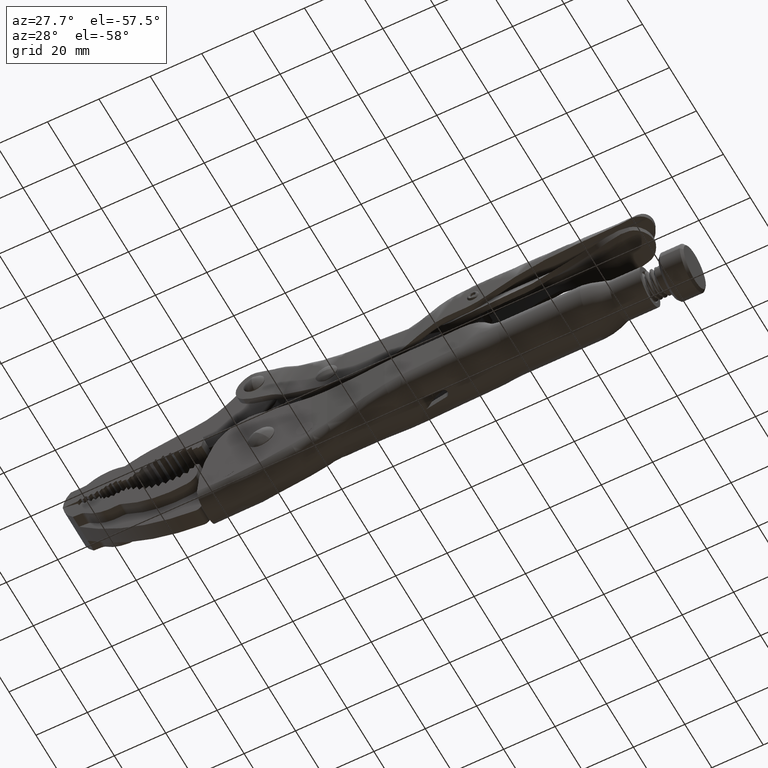
[diagram: clean part render]
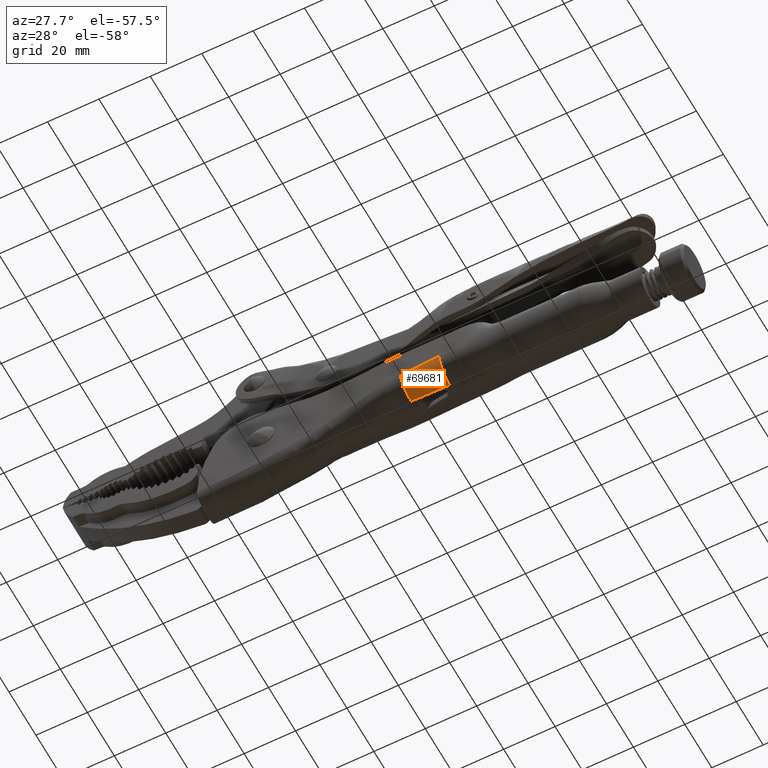
[diagram: same view with one face highlighted and labeled with its STEP entity id]
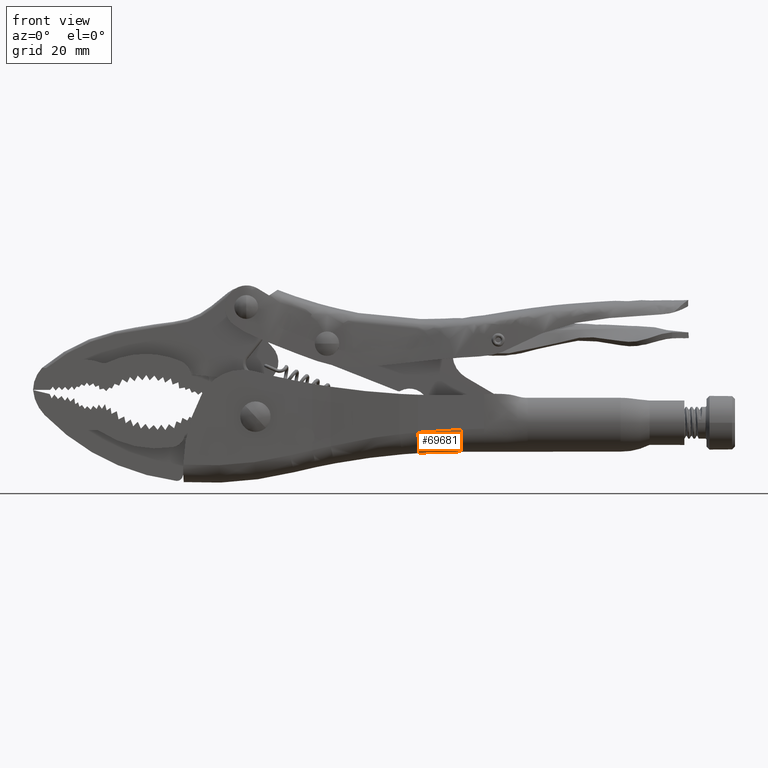
[diagram: same view with one face highlighted and labeled with its STEP entity id]
A machine part, auxiliary view. The second image highlights one B-rep face of the part: STEP entity #69681.
A second angle (front view) of the same face is appended — the face is thin or edge-on in the first view.
In plain terms, the highlighted face is a freeform B-spline surface patch.
Its self-contained STEP definition (entity closure, byte-faithful):
#183 = CARTESIAN_POINT ( 'NONE',  ( 61.49034173656430400, -19.99999999999998900, -3.135650601899519200 ) ) ;
#287 = DIRECTION ( 'NONE',  ( 1.800367193754544300E-015, 0.0000000000000000000, -1.000000000000000000 ) ) ;
#524 = CARTESIAN_POINT ( 'NONE',  ( 59.07831686355142900, -19.99999963617992200, -3.353681059114300500 ) ) ;
#855 = CARTESIAN_POINT ( 'NONE',  ( 57.11263101787631800, -20.00000000000000000, -3.528816097367310200 ) ) ;
#1028 = ORIENTED_EDGE ( 'NONE', *, *, #30208, .F. ) ;
#2699 = CARTESIAN_POINT ( 'NONE',  ( 58.36134160243837200, -20.00000000000046900, -3.411096639634326100 ) ) ;
#3038 = CARTESIAN_POINT ( 'NONE',  ( 63.54545003966574500, -19.99999999996611400, -10.50000000000001100 ) ) ;
#3376 = CARTESIAN_POINT ( 'NONE',  ( 68.42975549948826600, -12.18158827290741900, -10.50000000000000900 ) ) ;
#6967 = CARTESIAN_POINT ( 'NONE',  ( 68.42975549948826600, -20.00000000000000400, -2.791690352970017200 ) ) ;
#7293 = CARTESIAN_POINT ( 'NONE',  ( 65.12368582375523800, -19.99999999999998600, -2.881806214197649500 ) ) ;
#7426 = CARTESIAN_POINT ( 'NONE',  ( 63.54545003969474900, -12.29169035650321900, -10.50000000000000900 ) ) ;
#7614 = CARTESIAN_POINT ( 'NONE',  ( 63.19737676863434900, -20.00000000000001100, -3.000149862796279300 ) ) ;
#7942 = CARTESIAN_POINT ( 'NONE',  ( 61.03133046595368000, -19.99999999999999600, -3.176363073181995800 ) ) ;
#8269 = CARTESIAN_POINT ( 'NONE',  ( 58.68172605334304100, -19.99999977518374900, -3.389348684065014400 ) ) ;
#8600 = CARTESIAN_POINT ( 'NONE',  ( 56.77497128624731500, -20.00000000000001100, -3.559330362659941300 ) ) ;
#8835 = CARTESIAN_POINT ( 'NONE',  ( 53.78594692342453200, -20.00000000000000400, -10.94716893681342100 ) ) ;
#10430 = CARTESIAN_POINT ( 'NONE',  ( 68.42975549948826600, -20.00000000000000000, -2.682678392512009700 ) ) ;
#10767 = CARTESIAN_POINT ( 'NONE',  ( 53.78594692342451100, -12.85814175597235100, -10.94716893681342500 ) ) ;
#14717 = CARTESIAN_POINT ( 'NONE',  ( 67.67581867246279600, -19.99999999999999300, -2.791709567609243200 ) ) ;
#14872 = VERTEX_POINT ( 'NONE', #42478 ) ;
#15047 = CARTESIAN_POINT ( 'NONE',  ( 64.98480134004781000, -20.00000000000000400, -2.888982892651410100 ) ) ;
#15364 = CARTESIAN_POINT ( 'NONE',  ( 63.04487771660875900, -20.00000000000001400, -3.011153124156753100 ) ) ;
#15690 = CARTESIAN_POINT ( 'NONE',  ( 60.92210663014250800, -19.99999999999999600, -3.186223365355093800 ) ) ;
#16019 = CARTESIAN_POINT ( 'NONE',  ( 57.66171702337607000, -19.99999997518016700, -3.480631862505160000 ) ) ;
#16258 = CARTESIAN_POINT ( 'NONE',  ( 53.35018023591234000, -19.99999999999999600, -3.818617430943503300 ) ) ;
#16355 = CARTESIAN_POINT ( 'NONE',  ( 54.58805339979217300, -20.00000000000000400, -3.742927869715410700 ) ) ;
#18179 = CARTESIAN_POINT ( 'NONE',  ( 58.36343201861966200, -20.00000000000023100, -3.461563685442060800 ) ) ;
#18522 = CARTESIAN_POINT ( 'NONE',  ( 63.54545003969474900, -12.29169035650321900, -10.50000000000000900 ) ) ;
#21239 = VERTEX_POINT ( 'NONE', #25713 ) ;
#22801 = CARTESIAN_POINT ( 'NONE',  ( 64.95090442850623400, -20.00000000000000000, -2.890762558831874600 ) ) ;
#23133 = CARTESIAN_POINT ( 'NONE',  ( 62.99557614787737200, -20.00000000000001100, -3.014761510618368900 ) ) ;
#23152 =( BOUNDED_SURFACE ( )  B_SPLINE_SURFACE ( 2, 3, ( 
 ( #94191, #2699, #56363, #10430 ),
 ( #63967, #18179, #71599, #25990 ),
 ( #79214, #33677, #86879, #41344 ),
 ( #94521, #49015, #3038, #56690 ),
 ( #10767, #64309, #18522, #71927 ),
 ( #26333, #79549, #34004, #87211 ),
 ( #41686, #94852, #49340, #3376 ) ),
 .UNSPECIFIED., .F., .F., .T. ) 
 B_SPLINE_SURFACE_WITH_KNOTS ( ( 3, 2, 2, 3 ),
 ( 4, 4 ),
 ( -0.01000000000000000000, 0.0000000000000000000, 1.000000000000000000, 1.010100000000000000 ),
 ( -0.06105379233375352000, 1.156482317317871500E-016 ),
 .UNSPECIFIED. ) 
 GEOMETRIC_REPRESENTATION_ITEM ( )  RATIONAL_B_SPLINE_SURFACE ( (
 ( 1.000000000000000000, 1.000000000000000000, 1.000000000000000000, 1.000000000000000000),
 ( 1.000000000000000000, 1.000000000000000000, 1.000000000000000000, 1.000000000000000000),
 ( 1.000000000000000000, 1.000000000000000000, 1.000000000000000000, 1.000000000000000000),
 ( 0.7071067811865475700, 0.7071067811865475700, 0.7071067811865475700, 0.7071067811865475700),
 ( 1.000000000000000000, 1.000000000000000000, 1.000000000000000000, 1.000000000000000000),
 ( 1.000000000000000000, 1.000000000000000000, 1.000000000000000000, 1.000000000000000000),
 ( 1.000000000000000000, 1.000000000000000000, 1.000000000000000000, 1.000000000000000000) ) ) 
 REPRESENTATION_ITEM ( '' )  SURFACE ( )  );
#23457 = CARTESIAN_POINT ( 'NONE',  ( 60.88768652319792100, -19.99999999999999600, -3.189342913872028600 ) ) ;
#23792 = CARTESIAN_POINT ( 'NONE',  ( 57.24987305442530800, -19.99999999844420600, -3.516847588192197900 ) ) ;
#24369 = CARTESIAN_POINT ( 'NONE',  ( 53.78594692342451100, -12.85814175597234600, -10.94716893681343200 ) ) ;
#25713 = CARTESIAN_POINT ( 'NONE',  ( 68.42975549948826600, -20.00000000000000400, -2.791690352970017200 ) ) ;
#25990 = CARTESIAN_POINT ( 'NONE',  ( 68.42975549948826600, -20.00000000000000000, -2.737184372741015900 ) ) ;
#26333 = CARTESIAN_POINT ( 'NONE',  ( 53.78594692342451100, -12.80713618638663900, -10.94716893681342500 ) ) ;
#30208 = EDGE_CURVE ( 'NONE', #21239, #48523, #47668, .T. ) ;
#30537 = CARTESIAN_POINT ( 'NONE',  ( 64.94288246426324900, -20.00000000000000400, -2.891185340963883000 ) ) ;
#30867 = CARTESIAN_POINT ( 'NONE',  ( 62.98470654781160500, -20.00000000000001100, -3.015560221926976600 ) ) ;
#31204 = CARTESIAN_POINT ( 'NONE',  ( 60.27691414491805900, -19.99999976815385200, -3.244916169914697300 ) ) ;
#31534 = CARTESIAN_POINT ( 'NONE',  ( 57.14691776040736900, -19.99999999990269100, -3.525831106521374100 ) ) ;
#32403 = EDGE_CURVE ( 'NONE', #14872, #97723, #76858, .T. ) ;
#33677 = CARTESIAN_POINT ( 'NONE',  ( 58.36552243480095100, -19.99999999999998900, -3.512030731249795100 ) ) ;
#34004 = CARTESIAN_POINT ( 'NONE',  ( 63.54545003969495600, -12.23663931649739700, -10.50000000000000900 ) ) ;
#36233 = EDGE_CURVE ( 'NONE', #97723, #48523, #78206, .T. ) ;
#37898 = CARTESIAN_POINT ( 'NONE',  ( 66.13592260649257100, -20.00000000000000400, -2.836323533135883100 ) ) ;
#38225 = CARTESIAN_POINT ( 'NONE',  ( 64.94170199776871800, -20.00000000000000000, -2.891247582199698600 ) ) ;
#38556 = CARTESIAN_POINT ( 'NONE',  ( 62.98319253449560800, -20.00000000000000700, -3.015671519856355100 ) ) ;
#38887 = CARTESIAN_POINT ( 'NONE',  ( 59.56761767840536200, -19.99999954983556100, -3.309452715659912900 ) ) ;
#39215 = CARTESIAN_POINT ( 'NONE',  ( 57.12117928466275900, -19.99999999999391400, -3.528072210065541700 ) ) ;
#41344 = CARTESIAN_POINT ( 'NONE',  ( 68.42975549948826600, -20.00000000000000000, -2.791690352970021700 ) ) ;
#41686 = CARTESIAN_POINT ( 'NONE',  ( 53.78594692342451100, -12.75613061680092700, -10.94716893681342500 ) ) ;
#42478 = CARTESIAN_POINT ( 'NONE',  ( 53.35018023591234000, -19.99999999999999600, -3.818617430943503300 ) ) ;
#45573 = CARTESIAN_POINT ( 'NONE',  ( 65.49489461037930500, -19.99999999999999600, -2.863750422931736800 ) ) ;
#45897 = CARTESIAN_POINT ( 'NONE',  ( 63.99960106943232300, -20.00000000000001100, -2.945546971998741300 ) ) ;
#46224 = CARTESIAN_POINT ( 'NONE',  ( 62.10303811852990900, -20.00000000000000000, -3.083290823614779400 ) ) ;
#46325 = DIRECTION ( 'NONE',  ( 1.000000000000000000, 1.800367193754543900E-015, 1.800367193754543900E-015 ) ) ;
#46554 = CARTESIAN_POINT ( 'NONE',  ( 59.16056890365626200, -19.99999961273620700, -3.346266515405818000 ) ) ;
#46875 = CARTESIAN_POINT ( 'NONE',  ( 57.11505109645352000, -19.99999999999956700, -3.528605520157034500 ) ) ;
#47668 = CIRCLE ( 'NONE', #53039, 7.708309647029985000 ) ;
#48523 = VERTEX_POINT ( 'NONE', #93239 ) ;
#49015 = CARTESIAN_POINT ( 'NONE',  ( 58.66115192625850500, -19.99999999996611400, -10.64914879467006500 ) ) ;
#49249 = FACE_OUTER_BOUND ( 'NONE', #97232, .T. ) ;
#49340 = CARTESIAN_POINT ( 'NONE',  ( 63.54545003969516900, -12.18158827649157800, -10.50000000000000900 ) ) ;
#53039 = AXIS2_PLACEMENT_3D ( 'NONE', #91839, #46325, #287 ) ;
#53235 = CARTESIAN_POINT ( 'NONE',  ( 65.20656559696875800, -20.00000000000000700, -2.877656519220287600 ) ) ;
#53558 = CARTESIAN_POINT ( 'NONE',  ( 63.37053677884486500, -20.00000000000001400, -2.987896890370631600 ) ) ;
#53885 = CARTESIAN_POINT ( 'NONE',  ( 61.18428566210544500, -20.00000000000000000, -3.162664162747493200 ) ) ;
#54211 = CARTESIAN_POINT ( 'NONE',  ( 59.03489864876652900, -19.99999965027846800, -3.357590208257332300 ) ) ;
#54549 = CARTESIAN_POINT ( 'NONE',  ( 57.09662828782509800, -20.00000000000000700, -3.530208484602597200 ) ) ;
#56363 = CARTESIAN_POINT ( 'NONE',  ( 63.38134051543510600, -20.00000000000048000, -2.682678396085798500 ) ) ;
#56690 = CARTESIAN_POINT ( 'NONE',  ( 68.42975549948825200, -20.00000000000000400, -10.50000000000001100 ) ) ;
#60885 = CARTESIAN_POINT ( 'NONE',  ( 65.03051004174800200, -20.00000000000001100, -2.886600491941827800 ) ) ;
#61016 = CARTESIAN_POINT ( 'NONE',  ( 68.42975549948823800, -12.29169035297001000, -10.49999999999999800 ) ) ;
#61194 = CARTESIAN_POINT ( 'NONE',  ( 63.11975710171189000, -20.00000000000001400, -3.005713409509620100 ) ) ;
#61520 = CARTESIAN_POINT ( 'NONE',  ( 60.95487105463537600, -19.99999999999999300, -3.183258529664911900 ) ) ;
#61852 = CARTESIAN_POINT ( 'NONE',  ( 58.21090167079864800, -19.99999990109880700, -3.431760851890112400 ) ) ;
#62174 = CARTESIAN_POINT ( 'NONE',  ( 55.52066041879144400, -20.00000000000001100, -3.664638269741478500 ) ) ;
#62178 = ORIENTED_EDGE ( 'NONE', *, *, #94029, .T. ) ;
#63967 = CARTESIAN_POINT ( 'NONE',  ( 53.34709890011479400, -20.00000000000000000, -3.768210959845114300 ) ) ;
#64309 = CARTESIAN_POINT ( 'NONE',  ( 58.66115192621991500, -12.85814175243914400, -10.64914879439576400 ) ) ;
#68492 = CARTESIAN_POINT ( 'NONE',  ( 64.96216677019562300, -20.00000000000000400, -2.890170041958884700 ) ) ;
#68815 = CARTESIAN_POINT ( 'NONE',  ( 63.01135688828328800, -19.99999999999999600, -3.013604026766004500 ) ) ;
#69139 = CARTESIAN_POINT ( 'NONE',  ( 60.90026454567708200, -19.99999999999999300, -3.188202040581669100 ) ) ;
#69453 = CARTESIAN_POINT ( 'NONE',  ( 57.38715028297312400, -19.99999999378296400, -3.504823853810810500 ) ) ;
#69681 = ADVANCED_FACE ( 'NONE', ( #49249 ), #23152, .T. ) ;
#69781 = CARTESIAN_POINT ( 'NONE',  ( 53.35018023591234000, -19.99999999999999600, -3.818617430943503300 ) ) ;
#71599 = CARTESIAN_POINT ( 'NONE',  ( 63.38248476290658600, -20.00000000000024200, -2.737184376289886400 ) ) ;
#71927 = CARTESIAN_POINT ( 'NONE',  ( 68.42975549948826600, -12.29169035297001100, -10.50000000000000900 ) ) ;
#72131 = CARTESIAN_POINT ( 'NONE',  ( 53.78594692342451100, -12.85814175597234600, -10.94716893681343200 ) ) ;
#75939 = CARTESIAN_POINT ( 'NONE',  ( 58.66115192621991500, -12.85814175243914400, -10.64914879439576400 ) ) ;
#76128 = CARTESIAN_POINT ( 'NONE',  ( 64.94528699322089000, -20.00000000000000400, -2.891058547244465900 ) ) ;
#76453 = CARTESIAN_POINT ( 'NONE',  ( 62.98793069116606300, -20.00000000000000000, -3.015323176108783100 ) ) ;
#76769 = CARTESIAN_POINT ( 'NONE',  ( 60.58201530026204300, -19.99999999999999600, -3.217094825569468200 ) ) ;
#76858 =( BOUNDED_CURVE ( )  B_SPLINE_CURVE ( 2, ( #16258, #8835, #24369 ),
 .UNSPECIFIED., .F., .F. ) 
 B_SPLINE_CURVE_WITH_KNOTS ( ( 3, 3 ),
 ( 0.0000000000000000000, 1.000000000000000000 ),
 .UNSPECIFIED. ) 
 CURVE ( )  GEOMETRIC_REPRESENTATION_ITEM ( )  RATIONAL_B_SPLINE_CURVE ( ( 1.000000000000000000, 0.7071067811865475700, 1.000000000000000000 ) ) 
 REPRESENTATION_ITEM ( '' )  );
#77091 = CARTESIAN_POINT ( 'NONE',  ( 57.18123594378868500, -19.99999999961085000, -3.522839967056834000 ) ) ;
#78206 = B_SPLINE_CURVE_WITH_KNOTS ( 'NONE', 3,
 ( #98840, #75939, #7426, #61016 ),
 .UNSPECIFIED., .F., .F.,
 ( 4, 4 ),
 ( 0.0000000000000000000, 1.000000000000000000 ),
 .UNSPECIFIED. ) ;
#79214 = CARTESIAN_POINT ( 'NONE',  ( 53.35018023591234000, -20.00000000000000000, -3.818617430943496600 ) ) ;
#79549 = CARTESIAN_POINT ( 'NONE',  ( 58.66115192621963800, -12.80713618282844000, -10.64914879439380400 ) ) ;
#81611 = B_SPLINE_CURVE_WITH_KNOTS ( 'NONE', 3,
 ( #6967, #14717, #83428, #37898, #91086, #45573, #98705, #53235, #7293, #60885, #15047, #68492, #22801, #76128, #30537, #83745, #38225, #91411, #45897, #99021, #53558, #7614, #61194, #15364, #68815, #23133, #76453, #30867, #84068, #38556, #91740, #46224, #183, #53885, #7942, #61520, #15690, #69139, #23457, #76769, #31204, #84408, #38887, #92062, #46554, #524, #54211, #8269, #61852, #16019, #69453, #23792, #77091, #31534, #84729, #39215, #92385, #46875, #855, #54549, #8600, #62174, #16355, #69781 ),
 .UNSPECIFIED., .F., .F.,
 ( 4, 2, 2, 2, 1, 1, 1, 1, 1, 1, 2, 2, 2, 2, 1, 1, 1, 1, 1, 2, 2, 1, 1, 1, 1, 1, 2, 2, 2, 1, 1, 2, 2, 1, 1, 1, 1, 1, 1, 1, 1, 2, 2, 2, 4 ),
 ( 0.0000000000000000000, 0.1249999999933976100, 0.1874999999900964200, 0.2187499999884440800, 0.2343749999876179300, 0.2421874999872048200, 0.2460937499869962400, 0.2480468749868898500, 0.2490234374868345300, 0.2495117187368047800, 0.2497558593617920400, 0.2499999999867792700, 0.3124999999836073300, 0.3437499999820213300, 0.3593749999812283500, 0.3671874999808318900, 0.3710937499806309400, 0.3730468749805304100, 0.3740234374804771200, 0.3745117187304536400, 0.3749999999804301000, 0.4374999999774414300, 0.4687499999759470700, 0.4843749999751992800, 0.4921874999748254200, 0.4960937499746384500, 0.4980468749745449700, 0.4999999999744515500, 0.5624999999714412900, 0.5937499999699369400, 0.6093749999691847600, 0.6171874999688079500, 0.6249999999684311400, 0.6874999999654196600, 0.7187499999639139800, 0.7343749999631604700, 0.7421874999627843300, 0.7460937499625969200, 0.7480468749625032200, 0.7490234374624558100, 0.7495117187124312700, 0.7497558593374197300, 0.7499999999624081800, 0.8749999999812040400, 1.000000000000000000 ),
 .UNSPECIFIED. ) ;
#82367 = ORIENTED_EDGE ( 'NONE', *, *, #32403, .T. ) ;
#83428 = CARTESIAN_POINT ( 'NONE',  ( 67.00827487823195800, -20.00000000000000400, -2.807124638409374700 ) ) ;
#83745 = CARTESIAN_POINT ( 'NONE',  ( 64.94128009902350100, -20.00000000000000700, -2.891269857053647000 ) ) ;
#84068 = CARTESIAN_POINT ( 'NONE',  ( 62.98256878128610500, -20.00000000000001400, -3.015717436418867200 ) ) ;
#84408 = CARTESIAN_POINT ( 'NONE',  ( 59.80622308303105700, -19.99999959858746800, -3.287756989367591300 ) ) ;
#84729 = CARTESIAN_POINT ( 'NONE',  ( 57.12975876120442800, -19.99999999997566700, -3.527325391525276000 ) ) ;
#84732 = ORIENTED_EDGE ( 'NONE', *, *, #36233, .T. ) ;
#86879 = CARTESIAN_POINT ( 'NONE',  ( 63.38362901037807300, -20.00000000000000000, -2.791690356493974300 ) ) ;
#87211 = CARTESIAN_POINT ( 'NONE',  ( 68.42975549948826600, -12.23663931293871500, -10.50000000000000900 ) ) ;
#91086 = CARTESIAN_POINT ( 'NONE',  ( 65.86663536215722600, -20.00000000000000400, -2.847170894924516900 ) ) ;
#91411 = CARTESIAN_POINT ( 'NONE',  ( 64.42171829543920600, -20.00000000000000700, -2.918687812975849600 ) ) ;
#91740 = CARTESIAN_POINT ( 'NONE',  ( 62.62921315514671500, -20.00000000000001100, -3.041717458560857500 ) ) ;
#91839 = CARTESIAN_POINT ( 'NONE',  ( 68.42975549948825200, -12.29169035297001000, -2.791690352970010100 ) ) ;
#92062 = CARTESIAN_POINT ( 'NONE',  ( 59.28353939537084500, -19.99999958237025100, -3.335168603952661600 ) ) ;
#92385 = CARTESIAN_POINT ( 'NONE',  ( 57.11750237107967400, -19.99999999999782600, -3.528392205436047500 ) ) ;
#93239 = CARTESIAN_POINT ( 'NONE',  ( 68.42975549948823800, -12.29169035297001000, -10.49999999999999800 ) ) ;
#94029 = EDGE_CURVE ( 'NONE', #21239, #14872, #81611, .T. ) ;
#94191 = CARTESIAN_POINT ( 'NONE',  ( 53.34401756431724100, -20.00000000000000000, -3.717804488746732500 ) ) ;
#94521 = CARTESIAN_POINT ( 'NONE',  ( 53.78594692342453200, -20.00000000000000400, -10.94716893681342100 ) ) ;
#94852 = CARTESIAN_POINT ( 'NONE',  ( 58.66115192621936100, -12.75613061321773700, -10.64914879439184700 ) ) ;
#97232 = EDGE_LOOP ( 'NONE', ( #1028, #62178, #82367, #84732 ) ) ;
#97723 = VERTEX_POINT ( 'NONE', #72131 ) ;
#98705 = CARTESIAN_POINT ( 'NONE',  ( 65.37634618805772400, -20.00000000000000700, -2.869332846314461200 ) ) ;
#98840 = CARTESIAN_POINT ( 'NONE',  ( 53.78594692342451100, -12.85814175597234600, -10.94716893681343200 ) ) ;
#99021 = CARTESIAN_POINT ( 'NONE',  ( 63.50987062194947400, -20.00000000000001800, -2.978217882656716100 ) ) ;